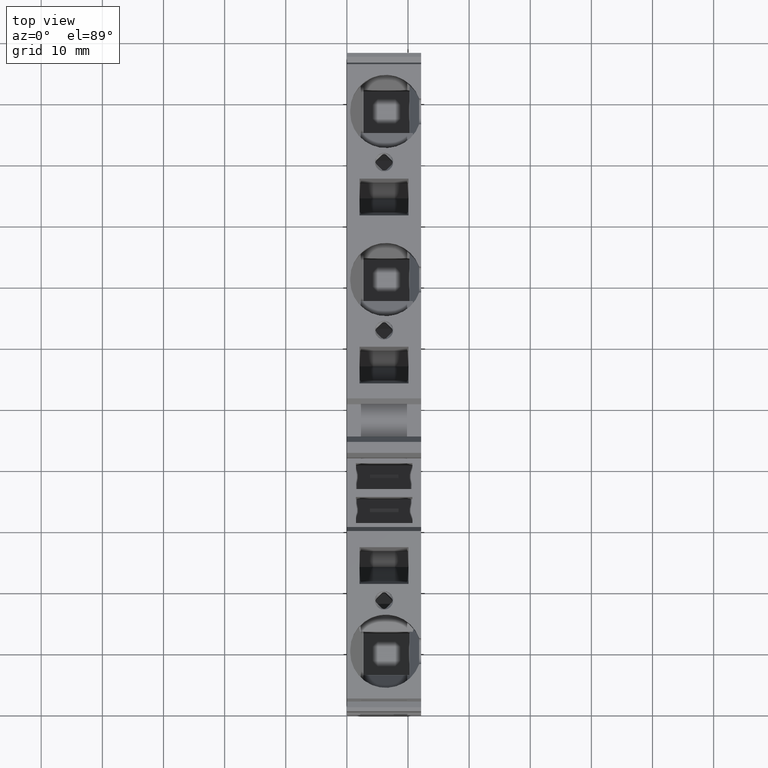
[diagram: clean part render]
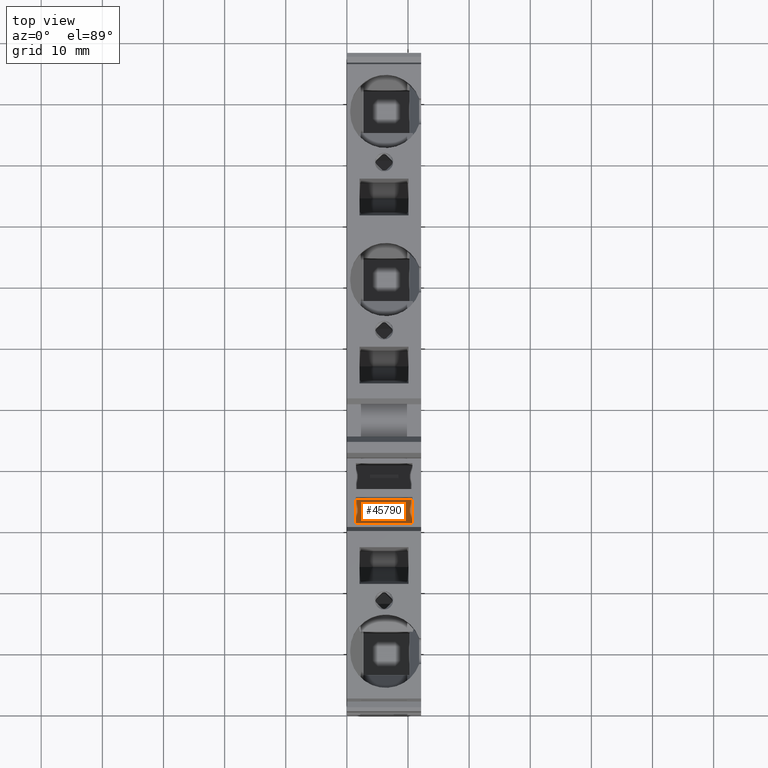
[diagram: same view with one face highlighted and labeled with its STEP entity id]
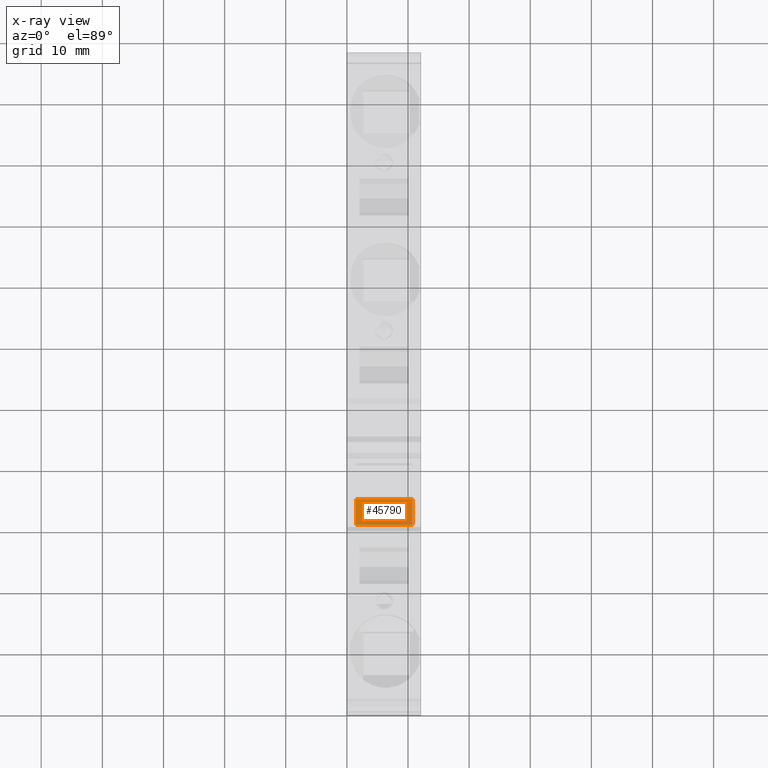
[diagram: x-ray of the same camera — body ghosted, the highlighted face saturated]
A machine part, top view. The second image highlights one B-rep face of the part: STEP entity #45790.
The next image is the same camera in x-ray: the body ghosted, the highlighted face saturated — about 8% of this face is hidden behind the body in this view.
In plain terms, the highlighted planar face has unit normal (-0, 0, 1).
Its self-contained STEP definition (entity closure, byte-faithful):
#45400=CARTESIAN_POINT('',(-1.04576100440445,11.895346352701,
-317.15000000009));
#45410=DIRECTION('',(1.05471187339389E-15,1.,-5.71326211888271E-15));
#45420=DIRECTION('',(1.,-1.05471187339389E-15,6.80346972348291E-16));
#45430=AXIS2_PLACEMENT_3D('',#45400,#45410,#45420);
#45440=PLANE('',#45430);
#45450=CARTESIAN_POINT('',(-7.34576100440453,11.895346352701,-322.175));
#45460=DIRECTION('',(-1.,1.05471187339389E-15,-6.80346972348291E-16));
#45470=VECTOR('',#45460,1.);
#45480=LINE('',#45450,#45470);
#45490=CARTESIAN_POINT('',(-7.34576100440453,11.895346352701,-322.175));
#45500=VERTEX_POINT('',#45490);
#45510=CARTESIAN_POINT('',(-11.6207610044051,11.895346352701,-322.175));
#45520=VERTEX_POINT('',#45510);
#45530=EDGE_CURVE('',#45500,#45520,#45480,.T.);
#45540=ORIENTED_EDGE('',*,*,#45530,.T.);
#45550=CARTESIAN_POINT('',(-7.34576100440454,11.8953463527011,-312.925))
;
#45560=DIRECTION('',(6.80346972348285E-16,-5.71326211888271E-15,-1.));
#45570=VECTOR('',#45560,1.);
#45580=LINE('',#45550,#45570);
#45590=CARTESIAN_POINT('',(-7.34576100440454,11.8953463527011,-312.925))
;
#45600=VERTEX_POINT('',#45590);
#45610=EDGE_CURVE('',#45600,#45500,#45580,.T.);
#45620=ORIENTED_EDGE('',*,*,#45610,.T.);
#45630=CARTESIAN_POINT('',(-11.6207610044051,11.8953463527011,-312.925))
;
#45640=DIRECTION('',(1.,-1.05471187339389E-15,6.80346972348291E-16));
#45650=VECTOR('',#45640,1.);
#45660=LINE('',#45630,#45650);
#45670=CARTESIAN_POINT('',(-11.6207610044051,11.8953463527011,-312.925))
;
#45680=VERTEX_POINT('',#45670);
#45690=EDGE_CURVE('',#45680,#45600,#45660,.T.);
#45700=ORIENTED_EDGE('',*,*,#45690,.T.);
#45710=CARTESIAN_POINT('',(-11.6207610044051,11.895346352701,-322.175));
#45720=DIRECTION('',(-6.80346972348285E-16,5.71326211888271E-15,1.));
#45730=VECTOR('',#45720,1.);
#45740=LINE('',#45710,#45730);
#45750=EDGE_CURVE('',#45520,#45680,#45740,.T.);
#45760=ORIENTED_EDGE('',*,*,#45750,.T.);
#45770=EDGE_LOOP('',(#45760,#45700,#45620,#45540));
#45780=FACE_OUTER_BOUND('',#45770,.T.);
#45790=ADVANCED_FACE('',(#45780),#45440,.T.);